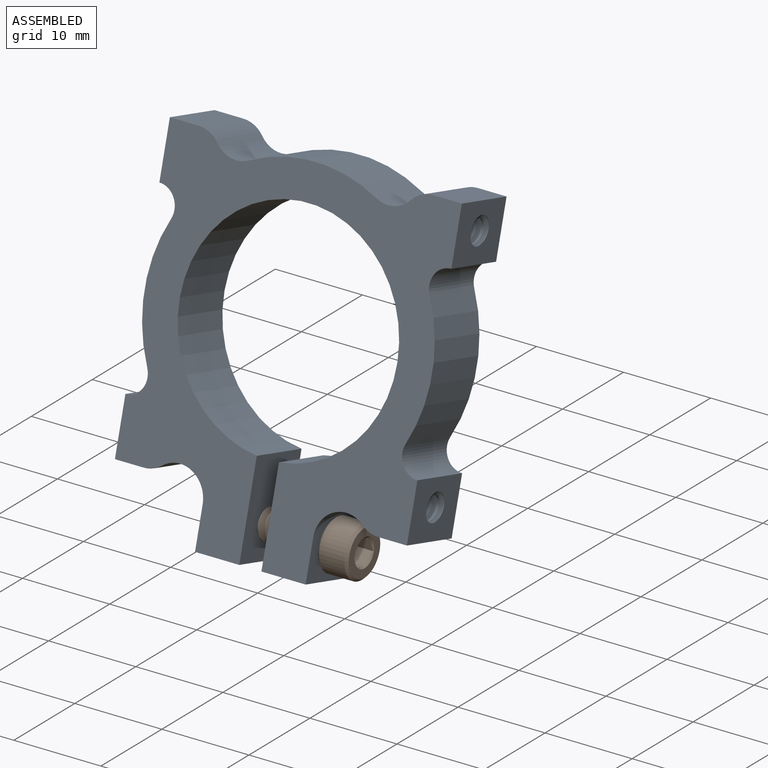
[diagram: assembled view]
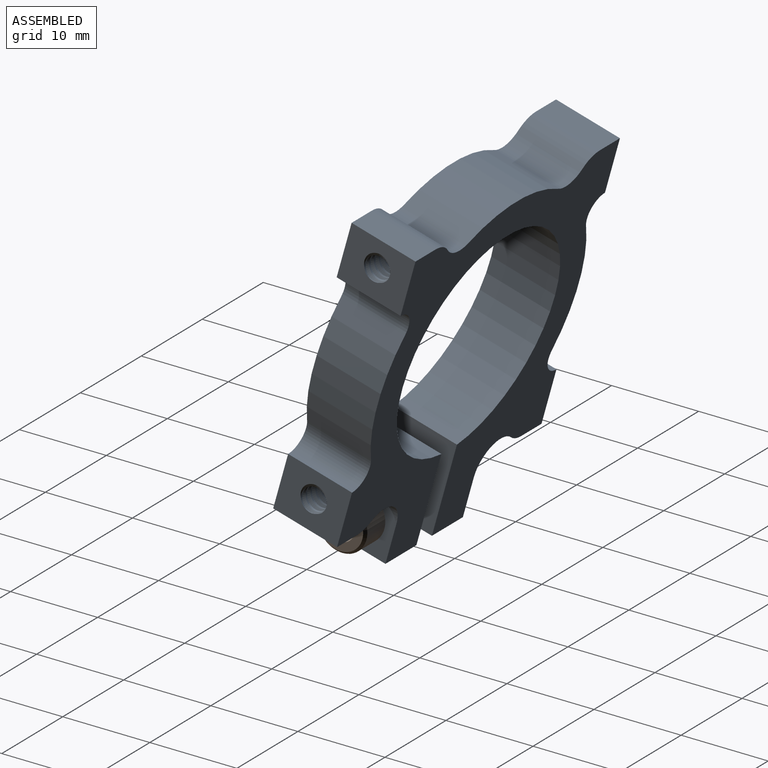
[diagram: assembled view, second angle]
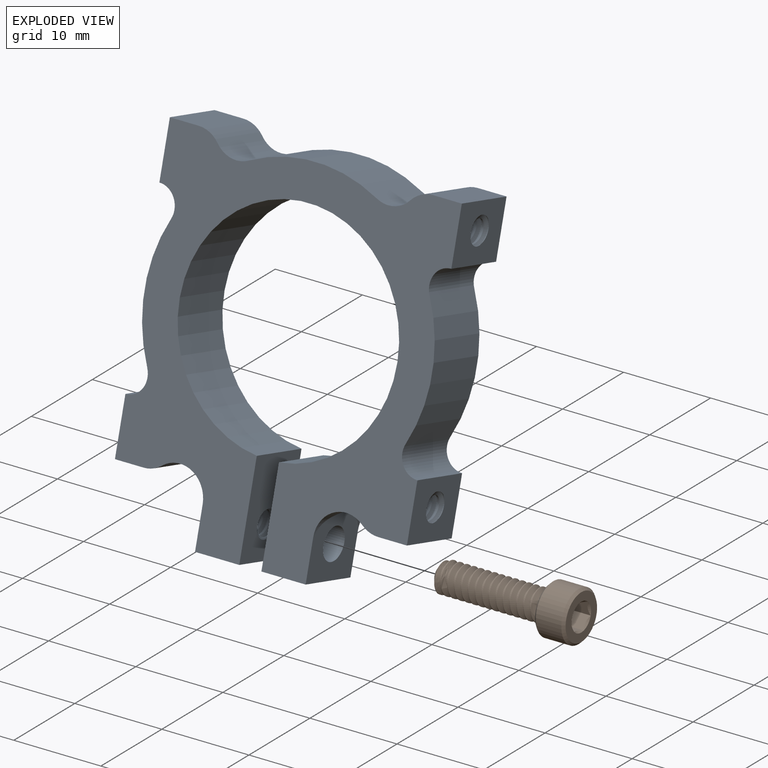
[diagram: exploded view]
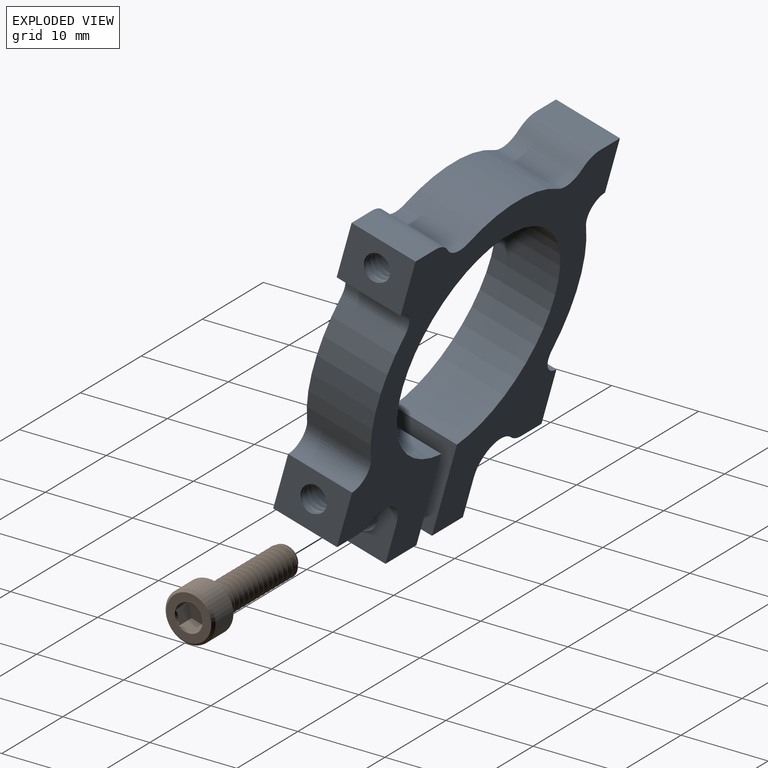
[diagram: exploded view, second angle]
ASSEMBLY  parts=2 mates=2
PART A: 86 faces, bbox 34.2x7.8x39.9 mm
  f0: cylinder r=1.75mm len=4.43mm, axis (1,0,0), area 6.1mm2, adj f42,f83,f84,f85
  f1: cylinder r=1.75mm len=4.43mm, axis (-1,0,0), area 6.1mm2, adj f43,f80,f81,f82
  f2: cylinder r=1.75mm len=4.43mm, axis (-1,0,0), area 6.1mm2, adj f44,f77,f78,f79
  f3: cylinder r=1.75mm len=5.09mm, axis (-1,0,0), area 7mm2, adj f45,f46,f60,f75,f76
  f4: cylinder r=1.75mm len=4.43mm, axis (1,0,0), area 6.1mm2, adj f47,f72,f73,f74
  f5: cylinder r=1.35mm len=5.08mm, axis (1,0,0), area 12.7mm2, adj f45,f46,f75,f76
  f6: cylinder r=1.78mm len=5.08mm, axis (1,0,0), area 56.8mm2, adj f55,f57
  f7: cylinder r=3.81mm len=7.36mm, axis (-1,0,0), area 8.6mm2, adj f48,f55
  f8: cylinder r=1.35mm len=2.71mm, axis (1,0,0), area 8.7mm2, adj f9,f15,f77,f78,f79
  f9: cylinder r=1.35mm len=2.71mm, axis (1,0,0), area 2mm2, adj f8,f10,f77,f78
  f10: cylinder r=1.35mm len=2.71mm, axis (1,0,0), area 2mm2, adj f9,f11,f77,f78
  f11: cylinder r=1.35mm len=2.71mm, axis (1,0,0), area 2mm2, adj f10,f12,f77,f78
  f12: cylinder r=1.35mm len=2.71mm, axis (1,0,0), area 2mm2, adj f11,f13,f77,f78
  f13: cylinder r=1.35mm len=2.71mm, axis (1,0,0), area 1.8mm2, adj f12,f14,f44,f77,f78
  f14: cylinder r=1.35mm len=0.78mm, axis (1,0,0), area 0mm2, adj f13,f44,f77
  f15: cone r=1.35mm half-angle=59deg, axis (1,0,0), area 6.7mm2, adj f8
  f16: cylinder r=1.35mm len=2.71mm, axis (1,0,0), area 8.7mm2, adj f17,f23,f80,f81,f82
  f17: cylinder r=1.35mm len=2.71mm, axis (1,0,0), area 2mm2, adj f16,f18,f80,f81
  f18: cylinder r=1.35mm len=2.71mm, axis (1,0,0), area 2mm2, adj f17,f19,f80,f81
  f19: cylinder r=1.35mm len=2.71mm, axis (1,0,0), area 2mm2, adj f18,f20,f80,f81
  f20: cylinder r=1.35mm len=2.71mm, axis (1,0,0), area 2mm2, adj f19,f21,f80,f81
  f21: cylinder r=1.35mm len=2.71mm, axis (1,0,0), area 1.8mm2, adj f20,f22,f43,f80,f81
  f22: cylinder r=1.35mm len=0.78mm, axis (1,0,0), area 0mm2, adj f21,f43,f80
  f23: cone r=1.35mm half-angle=59deg, axis (1,0,0), area 6.7mm2, adj f16
  f24: cylinder r=1.35mm len=2.71mm, axis (-1,0,0), area 8.7mm2, adj f25,f31,f72,f73,f74
  f25: cylinder r=1.35mm len=2.71mm, axis (-1,0,0), area 2mm2, adj f24,f26,f72,f73
  f26: cylinder r=1.35mm len=2.71mm, axis (-1,0,0), area 2mm2, adj f25,f27,f72,f73
  f27: cylinder r=1.35mm len=2.71mm, axis (-1,0,0), area 2mm2, adj f26,f28,f72,f73
  f28: cylinder r=1.35mm len=2.71mm, axis (-1,0,0), area 2mm2, adj f27,f29,f72,f73
  f29: cylinder r=1.35mm len=2.71mm, axis (-1,0,0), area 1.8mm2, adj f28,f30,f47,f72,f73
  f30: cylinder r=1.35mm len=0.78mm, axis (-1,0,0), area 0mm2, adj f29,f47,f72
  f31: cone r=1.35mm half-angle=59deg, axis (-1,0,0), area 6.7mm2, adj f24
  f32: cylinder r=1.35mm len=2.71mm, axis (-1,0,0), area 8.7mm2, adj f33,f39,f83,f84,f85
  f33: cylinder r=1.35mm len=2.71mm, axis (-1,0,0), area 2mm2, adj f32,f34,f83,f84
  f34: cylinder r=1.35mm len=2.71mm, axis (-1,0,0), area 2mm2, adj f33,f35,f83,f84
  f35: cylinder r=1.35mm len=2.71mm, axis (-1,0,0), area 2mm2, adj f34,f36,f83,f84
  f36: cylinder r=1.35mm len=2.71mm, axis (-1,0,0), area 2mm2, adj f35,f37,f83,f84
  f37: cylinder r=1.35mm len=2.71mm, axis (-1,0,0), area 1.8mm2, adj f36,f38,f42,f83,f84
  f38: cylinder r=1.35mm len=0.78mm, axis (-1,0,0), area 0mm2, adj f37,f42,f83
  f39: cone r=1.35mm half-angle=59deg, axis (-1,0,0), area 6.7mm2, adj f32
  f40: cylinder r=3.09mm len=7.62mm, axis (0,-1,0), area 31.1mm2, adj f68,f69,f70,f71
  f41: cylinder r=3.09mm len=7.62mm, axis (0,-1,0), area 31.1mm2, adj f67,f68,f70,f71
  f42: plane 7.81x6.54mm, normal (-1,0,0), area 41.1mm2, adj f0,f37,f38,f65,f66,f70,f71,f83
  f43: plane 7.81x6.54mm, normal (1,0,0), area 41.1mm2, adj f1,f21,f22,f49,f50,f70,f71,f80
  f44: plane 7.81x6.54mm, normal (1,0,0), area 41.1mm2, adj f2,f13,f14,f52,f53,f70,f71,f77
  f45: plane 10.81x7.81mm, normal (1,0,0), area 73.6mm2, adj f3,f5,f58,f59,f70,f71,f75,f76
  f46: plane 7.63x4.62mm, normal (-1,0,0), area 28.9mm2, adj f3,f5,f59,f60,f70,f71,f75,f76
  f47: plane 7.81x6.54mm, normal (-1,0,0), area 41.1mm2, adj f4,f29,f30,f62,f63,f70,f71,f72
  f48: cylinder r=3.18mm len=7.62mm, axis (0,-1,0), area 36.6mm2, adj f7,f54,f55,f70,f71
  f49: plane 7.62x3.29mm, normal (0,0,1), area 25.1mm2, adj f43,f69,f70,f71
  f50: cylinder r=2.13mm len=7.62mm, axis (0,-1,0), area 32.9mm2, adj f43,f51,f70,f71
  f51: cylinder r=16.51mm len=14.45mm, axis (0,-1,0), area 114mm2, adj f50,f52,f70,f71
  f52: cylinder r=2.13mm len=7.62mm, axis (0,-1,0), area 32.9mm2, adj f44,f51,f70,f71
  f53: plane 7.62x3.29mm, normal (0,0,-1), area 25.1mm2, adj f44,f54,f70,f71
  f54: cylinder r=3.17mm len=7.62mm, axis (0,-1,0), area 16.2mm2, adj f48,f53,f70,f71
  f55: plane 7.62x7.43mm, normal (1,0,0), area 40.5mm2, adj f6,f7,f48,f56,f70,f71
  f56: plane 7.62x5.08mm, normal (0,0,-1), area 38.7mm2, adj f55,f57,f70,f71
  f57: plane 10.62x7.62mm, normal (-1,0,0), area 71mm2, adj f6,f56,f58,f70,f71
  f58: cylinder r=12.5mm len=25mm, axis (0,-1,0), area 579.1mm2, adj f45,f57,f70,f71
  f59: plane 7.62x5.08mm, normal (0,0,-1), area 38.7mm2, adj f45,f46,f70,f71
  f60: cylinder r=3.18mm len=7.62mm, axis (0,-1,0), area 53.2mm2, adj f3,f46,f61,f70,f71,f76
  f61: cylinder r=3.17mm len=7.62mm, axis (0,-1,0), area 16.2mm2, adj f60,f62,f70,f71
  f62: plane 7.62x3.29mm, normal (0,0,-1), area 25.1mm2, adj f47,f61,f70,f71
  f63: cylinder r=2.13mm len=7.62mm, axis (0,-1,0), area 32.9mm2, adj f47,f64,f70,f71
  f64: cylinder r=16.51mm len=14.45mm, axis (0,-1,0), area 114mm2, adj f63,f65,f70,f71
  f65: cylinder r=2.13mm len=7.62mm, axis (0,-1,0), area 32.9mm2, adj f42,f64,f70,f71
  f66: plane 7.62x3.29mm, normal (0,0,1), area 25.1mm2, adj f42,f67,f70,f71
  f67: cylinder r=3.17mm len=7.62mm, axis (0,-1,0), area 20.8mm2, adj f41,f66,f70,f71
  f68: cylinder r=16.51mm len=14.69mm, axis (0,-1,0), area 116mm2, adj f40,f41,f70,f71
  f69: cylinder r=3.17mm len=7.62mm, axis (0,-1,0), area 20.8mm2, adj f40,f49,f70,f71
  f70: plane 39.7x33.53mm, normal (0,1,0), area 598.7mm2, adj f40,f41,f42,f43,f44,f45,f46,f47
  f71: plane 39.7x33.53mm, normal (0,-1,0), area 598.7mm2, adj f40,f41,f42,f43,f44,f45,f46,f47
  f72: bspline ~5.18x3.5mm, area 26mm2, adj f4,f24,f25,f26,f27,f28,f29,f30
  f73: bspline ~4.94x3.5mm, area 26mm2, adj f4,f24,f25,f26,f27,f28,f29,f47
  f74: cone r=0.98mm half-angle=55deg, axis (-1,0,0), area 1.9mm2, adj f4,f24,f72,f73
  f75: bspline ~5.54x3.5mm, area 28.9mm2, adj f3,f5,f45,f46
  f76: bspline ~5.56x3.5mm, area 28.9mm2, adj f3,f5,f45,f46,f60
  f77: bspline ~5.18x3.5mm, area 26mm2, adj f2,f8,f9,f10,f11,f12,f13,f14
  f78: bspline ~4.94x3.5mm, area 26mm2, adj f2,f8,f9,f10,f11,f12,f13,f44
  f79: cone r=0.98mm half-angle=55deg, axis (1,0,0), area 1.9mm2, adj f2,f8,f77,f78
  f80: bspline ~5.18x3.5mm, area 26mm2, adj f1,f16,f17,f18,f19,f20,f21,f22
  f81: bspline ~4.94x3.5mm, area 26mm2, adj f1,f16,f17,f18,f19,f20,f21,f43
  f82: cone r=0.98mm half-angle=55deg, axis (1,0,0), area 1.9mm2, adj f1,f16,f80,f81
  f83: bspline ~5.18x3.5mm, area 26mm2, adj f0,f32,f33,f34,f35,f36,f37,f38
  f84: bspline ~4.94x3.5mm, area 26mm2, adj f0,f32,f33,f34,f35,f36,f37,f42
  f85: cone r=0.98mm half-angle=55deg, axis (-1,0,0), area 1.9mm2, adj f0,f32,f83,f84
PART B: 24 faces, bbox 6.3x6.3x16.9 mm
  f0: cone r=2.87mm half-angle=45deg, axis (0,0,-1), area 7mm2, adj f1,f8
  f1: plane 5.47x5.47mm, normal (0,0,1), area 13.8mm2, adj f0,f2,f5,f6,f7
  f2: bspline ~13.12x3.48mm, area 87.1mm2, adj f1,f3,f5,f7
  f3: cone r=0.98mm half-angle=55deg, axis (0,0,-1), area 5mm2, adj f2,f4,f5,f6,f7
  f4: plane 1.97x1.97mm, normal (0,0,1), area 3mm2, adj f3
  f5: cylinder r=1.24mm len=12.52mm, axis (0,0,-1), area 12.2mm2, adj f1,f2,f3,f6
  f6: bspline ~12.82x3.5mm, area 87.1mm2, adj f1,f3,f5,f7
  f7: cylinder r=1.75mm len=12.16mm, axis (0,0,1), area 16.7mm2, adj f1,f2,f3,f6
  f8: cylinder r=2.87mm len=5.74mm, axis (0,0,1), area 52.9mm2, adj f0,f9
  f9: cone r=2.58mm half-angle=45deg, axis (0,0,1), area 7mm2, adj f8,f10
  f10: plane 5.17x5.17mm, normal (0,0,-1), area 12.9mm2, adj f9,f11,f19,f20,f21,f22,f23
  f11: cone r=1.6mm half-angle=45deg, axis (0,0,-1), area 0mm2, adj f10,f12
  f12: plane 2.69x2mm, normal (-0.5,-0.87,0), area 3.1mm2, adj f11,f13,f17,f18
  f13: plane 3.21x2.78mm, normal (0,0,-1), area 6.7mm2, adj f12,f14,f15,f16,f17,f18
  f14: plane 2.24x1.76mm, normal (1,0,0), area 3.1mm2, adj f13,f15,f18,f22
  f15: plane 2.69x2mm, normal (0.5,0.87,0), area 3.1mm2, adj f13,f14,f16,f21
  f16: plane 2.69x2mm, normal (-0.5,0.87,0), area 3.1mm2, adj f13,f15,f17,f20
  f17: plane 2.69x2.21mm, normal (-1,0,0), area 3.1mm2, adj f12,f13,f16,f19
  f18: plane 2.69x2mm, normal (0.5,-0.87,0), area 3.1mm2, adj f12,f13,f14,f23
  f19: cone r=1.6mm half-angle=45deg, axis (0,0,-1), area 0mm2, adj f10,f17
  f20: cone r=1.6mm half-angle=45deg, axis (0,0,-1), area 0mm2, adj f10,f16
  f21: cone r=1.6mm half-angle=45deg, axis (0,0,-1), area 0mm2, adj f10,f15
  f22: cone r=1.6mm half-angle=45deg, axis (0,0,-1), area 0.2mm2, adj f10,f14
  f23: cone r=1.6mm half-angle=45deg, axis (0,0,-1), area 0mm2, adj f10,f18
PLACE A rot(axis=(-1,0,0),15.7deg) t=(9.83,5.28,3.96)mm
PLACE B rot(axis=(-0.14,-0.98,0.14),91.1deg) t=(3.48,3.69,-15.78)mm
MATE planar A.f55 <-> B.f0  axis (1,0,0) through (16.18,-0.34,-16.02)mm
MATE slider B.f0 <-> A.f5  axis (-1,0,0) through (17.93,3.69,-15.78)mm
